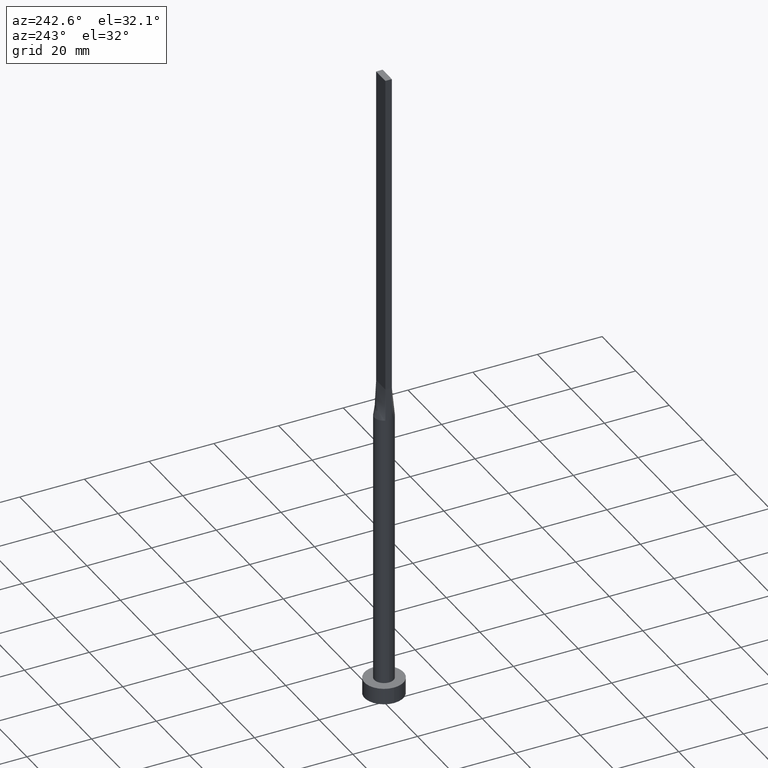
[diagram: clean part render]
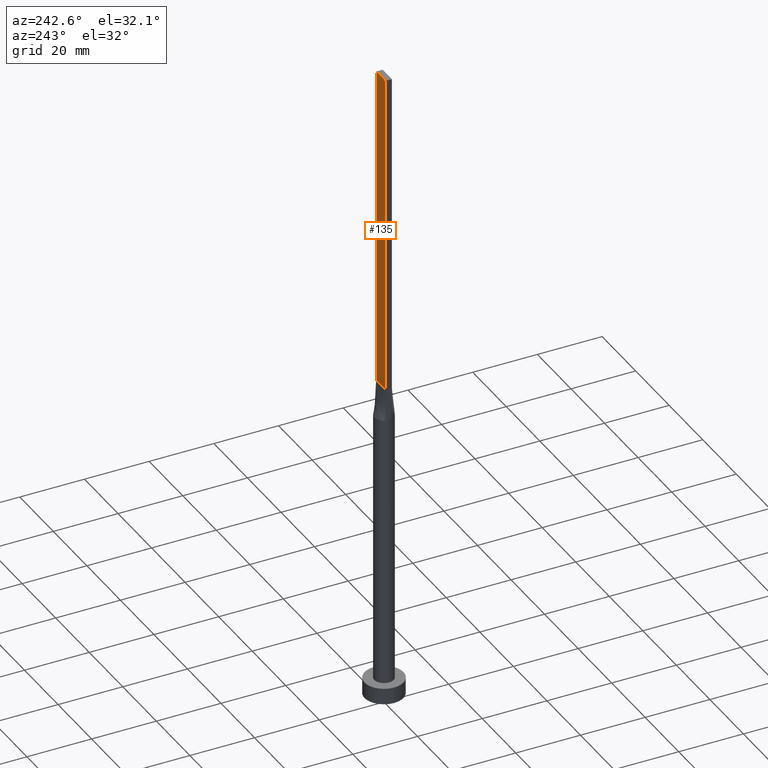
[diagram: same view with one face highlighted and labeled with its STEP entity id]
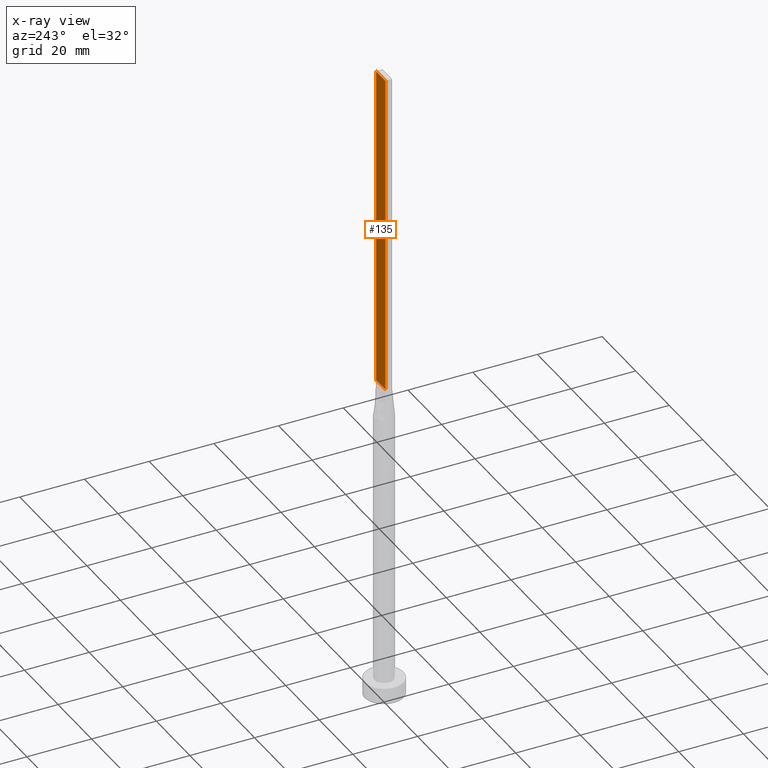
[diagram: x-ray of the same camera — body ghosted, the highlighted face saturated]
A machine part, auxiliary view. The second image highlights one B-rep face of the part: STEP entity #135.
The next image is the same camera in x-ray: the body ghosted, the highlighted face saturated — about 0% of this face is hidden behind the body in this view.
In plain terms, the highlighted planar face has unit normal (0, -1, 0).
Its self-contained STEP definition (entity closure, byte-faithful):
#49 = CARTESIAN_POINT ( 'NONE',  ( 2.749999999999999556, 1.000000000000000000, 200.0000000000000000 ) ) ;
#51 = ORIENTED_EDGE ( 'NONE', *, *, #297, .T. ) ;
#58 = CARTESIAN_POINT ( 'NONE',  ( -2.749999999999999556, 1.000000000000000000, 100.0000000000000000 ) ) ;
#83 = CARTESIAN_POINT ( 'NONE',  ( 2.749999999999999556, 1.000000000000000000, 200.0000000000000000 ) ) ;
#89 = CARTESIAN_POINT ( 'NONE',  ( -2.749999999999999556, 1.000000000000000000, 200.0000000000000000 ) ) ;
#91 = DIRECTION ( 'NONE',  ( -1.000000000000000000, 0.000000000000000000, 0.000000000000000000 ) ) ;
#103 = CARTESIAN_POINT ( 'NONE',  ( -2.749999999999999556, 1.000000000000000000, 200.0000000000000000 ) ) ;
#124 = VECTOR ( 'NONE', #279, 1000.000000000000000 ) ;
#132 = CARTESIAN_POINT ( 'NONE',  ( 2.749999999999999556, 1.000000000000000000, 200.0000000000000000 ) ) ;
#135 = ADVANCED_FACE ( 'NONE', ( #562 ), #508, .F. ) ;
#149 = LINE ( 'NONE', #103, #124 ) ;
#150 = EDGE_CURVE ( 'NONE', #346, #571, #413, .T. ) ;
#152 = DIRECTION ( 'NONE',  ( 0.000000000000000000, -1.000000000000000000, 0.000000000000000000 ) ) ;
#155 = ORIENTED_EDGE ( 'NONE', *, *, #150, .T. ) ;
#211 = AXIS2_PLACEMENT_3D ( 'NONE', #506, #152, #235 ) ;
#226 = EDGE_CURVE ( 'NONE', #480, #571, #149, .T. ) ;
#235 = DIRECTION ( 'NONE',  ( 0.000000000000000000, -0.000000000000000000, -1.000000000000000000 ) ) ;
#273 = VECTOR ( 'NONE', #91, 1000.000000000000000 ) ;
#279 = DIRECTION ( 'NONE',  ( -0.000000000000000000, -0.000000000000000000, -1.000000000000000000 ) ) ;
#297 = EDGE_CURVE ( 'NONE', #402, #346, #427, .T. ) ;
#336 = VECTOR ( 'NONE', #378, 1000.000000000000000 ) ;
#346 = VERTEX_POINT ( 'NONE', #543 ) ;
#353 = LINE ( 'NONE', #132, #273 ) ;
#368 = DIRECTION ( 'NONE',  ( -1.000000000000000000, -0.000000000000000000, -0.000000000000000000 ) ) ;
#371 = VECTOR ( 'NONE', #368, 1000.000000000000000 ) ;
#378 = DIRECTION ( 'NONE',  ( -0.000000000000000000, -0.000000000000000000, -1.000000000000000000 ) ) ;
#402 = VERTEX_POINT ( 'NONE', #49 ) ;
#413 = LINE ( 'NONE', #58, #371 ) ;
#427 = LINE ( 'NONE', #83, #336 ) ;
#480 = VERTEX_POINT ( 'NONE', #89 ) ;
#494 = EDGE_CURVE ( 'NONE', #402, #480, #353, .T. ) ;
#506 = CARTESIAN_POINT ( 'NONE',  ( 2.749999999999999556, 1.000000000000000000, 200.0000000000000000 ) ) ;
#508 = PLANE ( 'NONE',  #211 ) ;
#513 = CARTESIAN_POINT ( 'NONE',  ( -2.749999999999999556, 1.000000000000000000, 100.0000000000000000 ) ) ;
#521 = ORIENTED_EDGE ( 'NONE', *, *, #494, .F. ) ;
#525 = ORIENTED_EDGE ( 'NONE', *, *, #226, .F. ) ;
#543 = CARTESIAN_POINT ( 'NONE',  ( 2.749999999999999556, 1.000000000000000000, 100.0000000000000000 ) ) ;
#546 = EDGE_LOOP ( 'NONE', ( #155, #525, #521, #51 ) ) ;
#562 = FACE_OUTER_BOUND ( 'NONE', #546, .T. ) ;
#571 = VERTEX_POINT ( 'NONE', #513 ) ;